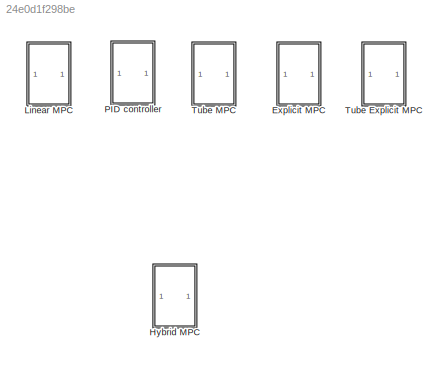
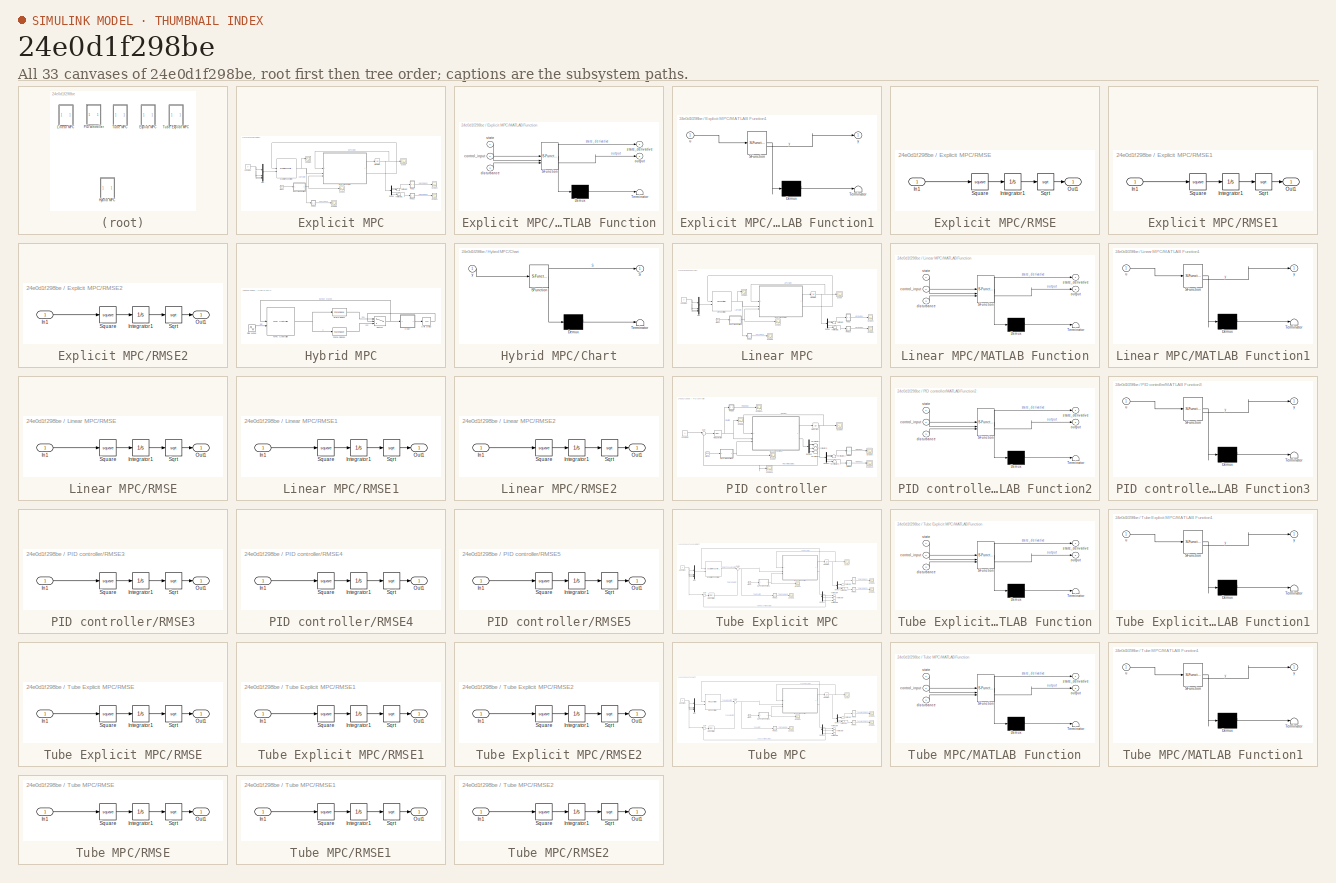
[diagram: thumbnail index - all 33 canvases of the model, root first then tree order]
MODEL slx_24e0d1f298be
KIND model
CONFIG AbsTol = auto
CONFIG EnableMultiTasking = off
CONFIG FixedStep = auto
CONFIG MaxStep = auto
CONFIG MinStep = auto
CONFIG RelTol = 1e-3
CONFIG SampleTimeConstraint = Unconstrained
CONFIG SolverName = VariableStepAuto
CONFIG StartTime = 0.0
CONFIG StopTime = 30
BLOCK [SubSystem] Explicit MPC
  Commented = on
BLOCK [Clock] Explicit MPC/Clock
BLOCK [Constant] Explicit MPC/Constant
  Value = 0
BLOCK [Demux] Explicit MPC/Demux
BLOCK [Reference] Explicit MPC/Explicit MPC Controller  REF=mpclib/Explicit MPC Controller  (lib defined in mdl_ae329e0e0455)
  SCDEnableBlockLinearizationSpecification = on
  SourceBlock = mpclib/Explicit MPC Controller
  SourceType = Explicit MPC
BLOCK [Integrator] Explicit MPC/Integrator
  InitialCondition = [0;0;0;0]
BLOCK [SubSystem] Explicit MPC/MATLAB Function
  ErrorFcn = Stateflow.Translate.translate
  LibrarySourceBlock = simulink/User-Defined\nFunctions/MATLAB Function
  PermitHierarchicalResolution = ExplicitOnly
  SFBlockType = MATLAB Function
  TreatAsAtomicUnit = on
BLOCK [Demux] Explicit MPC/MATLAB Function/ Demux 
  Outputs = 1
BLOCK [S-Function] Explicit MPC/MATLAB Function/ SFunction 
  EnableBusSupport = on
  FunctionName = sf_sfun
  PortCounts = [3 3]
  SFcnIsStateOwnerBlock = off
  SFunctionDeploymentMode = off
  Tag = Stateflow S-Function 5
BLOCK [Terminator] Explicit MPC/MATLAB Function/ Terminator 
BLOCK [Inport] Explicit MPC/MATLAB Function/control_input
  Port = 2
BLOCK [Inport] Explicit MPC/MATLAB Function/disturbance
  Port = 3
BLOCK [Outport] Explicit MPC/MATLAB Function/output
  Port = 2
BLOCK [Inport] Explicit MPC/MATLAB Function/state
BLOCK [Outport] Explicit MPC/MATLAB Function/state_derivative
BLOCK [SubSystem] Explicit MPC/MATLAB Function1
  ErrorFcn = Stateflow.Translate.translate
  LibrarySourceBlock = simulink/User-Defined\nFunctions/MATLAB Function
  PermitHierarchicalResolution = ExplicitOnly
  SFBlockType = MATLAB Function
  TreatAsAtomicUnit = on
BLOCK [Demux] Explicit MPC/MATLAB Function1/ Demux 
  Outputs = 1
BLOCK [S-Function] Explicit MPC/MATLAB Function1/ SFunction 
  EnableBusSupport = on
  FunctionName = sf_sfun
  PortCounts = [1 2]
  SFcnIsStateOwnerBlock = off
  SFunctionDeploymentMode = off
  Tag = Stateflow S-Function 6
BLOCK [Terminator] Explicit MPC/MATLAB Function1/ Terminator 
BLOCK [Inport] Explicit MPC/MATLAB Function1/u
BLOCK [Outport] Explicit MPC/MATLAB Function1/y
BLOCK [Mux] Explicit MPC/Mux
  DisplayOption = bar
BLOCK [SubSystem] Explicit MPC/RMSE
BLOCK [Inport] Explicit MPC/RMSE/In1
BLOCK [Integrator] Explicit MPC/RMSE/Integrator1
BLOCK [Outport] Explicit MPC/RMSE/Out1
BLOCK [Sqrt] Explicit MPC/RMSE/Sqrt
BLOCK [Math] Explicit MPC/RMSE/Square
  Operator = square
BLOCK [SubSystem] Explicit MPC/RMSE1
BLOCK [Inport] Explicit MPC/RMSE1/In1
BLOCK [Integrator] Explicit MPC/RMSE1/Integrator1
BLOCK [Outport] Explicit MPC/RMSE1/Out1
BLOCK [Sqrt] Explicit MPC/RMSE1/Sqrt
BLOCK [Math] Explicit MPC/RMSE1/Square
  Operator = square
BLOCK [SubSystem] Explicit MPC/RMSE2
BLOCK [Inport] Explicit MPC/RMSE2/In1
BLOCK [Integrator] Explicit MPC/RMSE2/Integrator1
BLOCK [Outport] Explicit MPC/RMSE2/Out1
BLOCK [Sqrt] Explicit MPC/RMSE2/Sqrt
BLOCK [Math] Explicit MPC/RMSE2/Square
  Operator = square
BLOCK [Scope] Explicit MPC/Scope
  Floating = off
  NumInputPorts = 1
  ScopeSpecificationString = Simulink.scopes.TimeScopeBlockCfg('CurrentConfiguration', extmgr.ConfigurationSet(extmgr.Configuration('Core','General UI',true,'FigureColor',[1 1 1]),extmgr.Configuration('Core','Source UI',true),extmgr.Configuration('Sources','WiredSimulink',true),extmgr.Configuration('Visuals','Time Domain',true,'SerializedDisplays',{struct('MinYLimReal','-4.64949','MaxYLimReal','4.78871','YLabelReal','','MinYL...<+2089ch>
BLOCK [Scope] Explicit MPC/Scope1
  Floating = off
  NumInputPorts = 1
  ScopeSpecificationString = Simulink.scopes.TimeScopeBlockCfg('CurrentConfiguration', extmgr.ConfigurationSet(extmgr.Configuration('Core','General UI',true),extmgr.Configuration('Core','Source UI',true),extmgr.Configuration('Sources','WiredSimulink',true,'DataLoggingVariableName','ScopeData1'),extmgr.Configuration('Visuals','Time Domain',true,'SerializedDisplays',{struct('MinYLimReal','-0.125','MaxYLimReal','1.125','YLabelRe...<+1363ch>  <repeated x4 — deduplicated; at blocks: Scope1>
BLOCK [Scope] Explicit MPC/Scope2
  Floating = off
  NumInputPorts = 1
  ScopeSpecificationString = Simulink.scopes.TimeScopeBlockCfg('CurrentConfiguration', extmgr.ConfigurationSet(extmgr.Configuration('Core','General UI',true,'FigureColor',[1 1 1]),extmgr.Configuration('Core','Source UI',true),extmgr.Configuration('Sources','WiredSimulink',true,'DataLoggingVariableName','ScopeData1'),extmgr.Configuration('Visuals','Time Domain',true,'SerializedDisplays',{struct('MinYLimReal','-0.22255','MaxYLi...<+1519ch>
BLOCK [Scope] Explicit MPC/Scope3
  Floating = off
  NumInputPorts = 1
  ScopeSpecificationString = Simulink.scopes.TimeScopeBlockCfg('CurrentConfiguration', extmgr.ConfigurationSet(extmgr.Configuration('Core','General UI',true),extmgr.Configuration('Core','Source UI',true),extmgr.Configuration('Sources','WiredSimulink',true,'DataLoggingVariableName','ScopeData1'),extmgr.Configuration('Visuals','Time Domain',true,'SerializedDisplays',{struct('MinYLimReal','-0.22155','MaxYLimReal','1.99397','YLab...<+1369ch>
BLOCK [Scope] Explicit MPC/Scope4
  Floating = off
  NumInputPorts = 1
  ScopeSpecificationString = Simulink.scopes.TimeScopeBlockCfg('CurrentConfiguration', extmgr.ConfigurationSet(extmgr.Configuration('Core','General UI',true),extmgr.Configuration('Core','Source UI',true),extmgr.Configuration('Sources','WiredSimulink',true,'DataLoggingVariableName','ScopeData2'),extmgr.Configuration('Visuals','Time Domain',true),extmgr.Configuration('Tools','Plot Navigation',true),extmgr.Configuration('Tools',...<+40ch>  <repeated x4 — deduplicated; at blocks: Scope4>
BLOCK [Scope] Explicit MPC/Scope5
  Floating = off
  NumInputPorts = 1
  ScopeSpecificationString = Simulink.scopes.TimeScopeBlockCfg('CurrentConfiguration', extmgr.ConfigurationSet(extmgr.Configuration('Core','General UI',true,'FigureColor',[1 1 1]),extmgr.Configuration('Core','Source UI',true),extmgr.Configuration('Sources','WiredSimulink',true,'DataLoggingVariableName','ScopeData3'),extmgr.Configuration('Visuals','Time Domain',true,'SerializedDisplays',{struct('MinYLimReal','-41752.10987','Ma...<+1550ch>  <repeated x4 — deduplicated; at blocks: Scope5>
BLOCK [Terminator] Explicit MPC/Terminator
BLOCK [Terminator] Explicit MPC/Terminator1
BLOCK [SubSystem] Hybrid MPC
BLOCK [SubSystem] Hybrid MPC/Chart
  ErrorFcn = Stateflow.Translate.translate
  PermitHierarchicalResolution = ExplicitOnly
  SFBlockType = Chart
  TreatAsAtomicUnit = on
BLOCK [Demux] Hybrid MPC/Chart/ Demux 
  Outputs = 1
BLOCK [S-Function] Hybrid MPC/Chart/ SFunction 
  EnableBusSupport = on
  FunctionName = sf_sfun
  PortCounts = [1 2]
  SFcnIsStateOwnerBlock = off
  SFunctionDeploymentMode = off
  Tag = Stateflow S-Function 11
BLOCK [Terminator] Hybrid MPC/Chart/ Terminator 
BLOCK [Outport] Hybrid MPC/Chart/S
BLOCK [Inport] Hybrid MPC/Chart/y
BLOCK [Reference] Hybrid MPC/MPC Controller  REF=mpclib/MPC Controller  (lib defined in mdl_ae329e0e0455)
  SCDEnableBlockLinearizationSpecification = on
  SourceBlock = mpclib/MPC Controller
  SourceType = MPC
BLOCK [Sin] Hybrid MPC/Sine Wave
  Amplitude = 20
  Frequency = pi/10
  SampleTime = 0
BLOCK [StateSpace] Hybrid MPC/State-Space
  A = [0 2;-2 -2]
  B = [0;2]
  C = [1 0]
  D = [0]
  InitialCondition = [0.5 ; 0]
BLOCK [StateSpace] Hybrid MPC/State-Space1
  A = [0 4;-4 -4]
  B = [0;4]
  C = [1 0]
  D = [0]
  InitialCondition = [0.5 ; 0]
BLOCK [Switch] Hybrid MPC/Switch
  Criteria = u2 > Threshold
  InputSameDT = off
  SaturateOnIntegerOverflow = off
BLOCK [UnitDelay] Hybrid MPC/Unit Delay
  HasFrameUpgradeWarning = on
  SampleTime = -1
BLOCK [SubSystem] Linear MPC
  Commented = on
BLOCK [Clock] Linear MPC/Clock
BLOCK [Constant] Linear MPC/Constant
  Value = 0
BLOCK [Demux] Linear MPC/Demux
BLOCK [Integrator] Linear MPC/Integrator
  InitialCondition = [0;0;0;0]
BLOCK [SubSystem] Linear MPC/MATLAB Function
  ErrorFcn = Stateflow.Translate.translate
  LibrarySourceBlock = simulink/User-Defined\nFunctions/MATLAB Function
  PermitHierarchicalResolution = ExplicitOnly
  SFBlockType = MATLAB Function
  TreatAsAtomicUnit = on
BLOCK [Demux] Linear MPC/MATLAB Function/ Demux 
  Outputs = 1
BLOCK [S-Function] Linear MPC/MATLAB Function/ SFunction 
  EnableBusSupport = on
  FunctionName = sf_sfun
  PortCounts = [3 3]
  SFcnIsStateOwnerBlock = off
  SFunctionDeploymentMode = off
  Tag = Stateflow S-Function 2
BLOCK [Terminator] Linear MPC/MATLAB Function/ Terminator 
BLOCK [Inport] Linear MPC/MATLAB Function/control_input
  Port = 2
BLOCK [Inport] Linear MPC/MATLAB Function/disturbance
  Port = 3
BLOCK [Outport] Linear MPC/MATLAB Function/output
  Port = 2
BLOCK [Inport] Linear MPC/MATLAB Function/state
BLOCK [Outport] Linear MPC/MATLAB Function/state_derivative
BLOCK [SubSystem] Linear MPC/MATLAB Function1
  ErrorFcn = Stateflow.Translate.translate
  LibrarySourceBlock = simulink/User-Defined\nFunctions/MATLAB Function
  PermitHierarchicalResolution = ExplicitOnly
  SFBlockType = MATLAB Function
  TreatAsAtomicUnit = on
BLOCK [Demux] Linear MPC/MATLAB Function1/ Demux 
  Outputs = 1
BLOCK [S-Function] Linear MPC/MATLAB Function1/ SFunction 
  EnableBusSupport = on
  FunctionName = sf_sfun
  PortCounts = [1 2]
  SFcnIsStateOwnerBlock = off
  SFunctionDeploymentMode = off
  Tag = Stateflow S-Function 1
BLOCK [Terminator] Linear MPC/MATLAB Function1/ Terminator 
BLOCK [Inport] Linear MPC/MATLAB Function1/u
BLOCK [Outport] Linear MPC/MATLAB Function1/y
BLOCK [Reference] Linear MPC/MPC Controller  REF=mpclib/MPC Controller  (lib defined in mdl_ae329e0e0455)
  SCDEnableBlockLinearizationSpecification = on
  SourceBlock = mpclib/MPC Controller
  SourceType = MPC
BLOCK [Mux] Linear MPC/Mux
  DisplayOption = bar
BLOCK [SubSystem] Linear MPC/RMSE
BLOCK [Inport] Linear MPC/RMSE/In1
BLOCK [Integrator] Linear MPC/RMSE/Integrator1
BLOCK [Outport] Linear MPC/RMSE/Out1
BLOCK [Sqrt] Linear MPC/RMSE/Sqrt
BLOCK [Math] Linear MPC/RMSE/Square
  Operator = square
BLOCK [SubSystem] Linear MPC/RMSE1
BLOCK [Inport] Linear MPC/RMSE1/In1
BLOCK [Integrator] Linear MPC/RMSE1/Integrator1
BLOCK [Outport] Linear MPC/RMSE1/Out1
BLOCK [Sqrt] Linear MPC/RMSE1/Sqrt
BLOCK [Math] Linear MPC/RMSE1/Square
  Operator = square
BLOCK [SubSystem] Linear MPC/RMSE2
BLOCK [Inport] Linear MPC/RMSE2/In1
BLOCK [Integrator] Linear MPC/RMSE2/Integrator1
BLOCK [Outport] Linear MPC/RMSE2/Out1
BLOCK [Sqrt] Linear MPC/RMSE2/Sqrt
BLOCK [Math] Linear MPC/RMSE2/Square
  Operator = square
BLOCK [Scope] Linear MPC/Scope
  Floating = off
  NumInputPorts = 1
  ScopeSpecificationString = Simulink.scopes.TimeScopeBlockCfg('CurrentConfiguration', extmgr.ConfigurationSet(extmgr.Configuration('Core','General UI',true,'FigureColor',[1 1 1]),extmgr.Configuration('Core','Source UI',true),extmgr.Configuration('Sources','WiredSimulink',true),extmgr.Configuration('Visuals','Time Domain',true,'SerializedDisplays',{struct('MinYLimReal','-53.86822','MaxYLimReal','8.29117','YLabelReal','','MinY...<+2092ch>
BLOCK [Scope] Linear MPC/Scope1
  Floating = off
  NumInputPorts = 1
BLOCK [Scope] Linear MPC/Scope2
  Floating = off
  NumInputPorts = 1
  ScopeSpecificationString = Simulink.scopes.TimeScopeBlockCfg('CurrentConfiguration', extmgr.ConfigurationSet(extmgr.Configuration('Core','General UI',true,'FigureColor',[1 1 1]),extmgr.Configuration('Core','Source UI',true),extmgr.Configuration('Sources','WiredSimulink',true,'DataLoggingVariableName','ScopeData1'),extmgr.Configuration('Visuals','Time Domain',true,'SerializedDisplays',{struct('MinYLimReal','-40299.43835','Ma...<+1547ch>
BLOCK [Scope] Linear MPC/Scope3
  Floating = off
  NumInputPorts = 1
  ScopeSpecificationString = Simulink.scopes.TimeScopeBlockCfg('CurrentConfiguration', extmgr.ConfigurationSet(extmgr.Configuration('Core','General UI',true),extmgr.Configuration('Core','Source UI',true),extmgr.Configuration('Sources','WiredSimulink',true,'DataLoggingVariableName','ScopeData1'),extmgr.Configuration('Visuals','Time Domain',true,'SerializedDisplays',{struct('MinYLimReal','-0.17546','MaxYLimReal','1.57916','YLab...<+1364ch>  <repeated x3 — deduplicated; at blocks: Scope3>
BLOCK [Scope] Linear MPC/Scope4
  Floating = off
  NumInputPorts = 1
BLOCK [Scope] Linear MPC/Scope5
  Floating = off
  NumInputPorts = 1
BLOCK [Terminator] Linear MPC/Terminator
BLOCK [Terminator] Linear MPC/Terminator1
BLOCK [SubSystem] PID controller
  Commented = on
BLOCK [Clock] PID controller/Clock1
BLOCK [Constant] PID controller/Constant1
  Value = 0
BLOCK [Demux] PID controller/Demux1
BLOCK [Demux] PID controller/Demux2
BLOCK [Integrator] PID controller/Integrator1
  InitialCondition = [0;0;0;0]
BLOCK [SubSystem] PID controller/MATLAB Function2
  ErrorFcn = Stateflow.Translate.translate
  LibrarySourceBlock = simulink/User-Defined\nFunctions/MATLAB Function
  PermitHierarchicalResolution = ExplicitOnly
  SFBlockType = MATLAB Function
  TreatAsAtomicUnit = on
BLOCK [Demux] PID controller/MATLAB Function2/ Demux 
  Outputs = 1
BLOCK [S-Function] PID controller/MATLAB Function2/ SFunction 
  EnableBusSupport = on
  FunctionName = sf_sfun
  PortCounts = [3 3]
  SFcnIsStateOwnerBlock = off
  SFunctionDeploymentMode = off
  Tag = Stateflow S-Function 3
BLOCK [Terminator] PID controller/MATLAB Function2/ Terminator 
BLOCK [Inport] PID controller/MATLAB Function2/control_input
  Port = 2
BLOCK [Inport] PID controller/MATLAB Function2/disturbance
  Port = 3
BLOCK [Outport] PID controller/MATLAB Function2/output
  Port = 2
BLOCK [Inport] PID controller/MATLAB Function2/state
BLOCK [Outport] PID controller/MATLAB Function2/state_derivative
BLOCK [SubSystem] PID controller/MATLAB Function3
  ErrorFcn = Stateflow.Translate.translate
  LibrarySourceBlock = simulink/User-Defined\nFunctions/MATLAB Function
  PermitHierarchicalResolution = ExplicitOnly
  SFBlockType = MATLAB Function
  TreatAsAtomicUnit = on
BLOCK [Demux] PID controller/MATLAB Function3/ Demux 
  Outputs = 1
BLOCK [S-Function] PID controller/MATLAB Function3/ SFunction 
  EnableBusSupport = on
  FunctionName = sf_sfun
  PortCounts = [1 2]
  SFcnIsStateOwnerBlock = off
  SFunctionDeploymentMode = off
  Tag = Stateflow S-Function 4
BLOCK [Terminator] PID controller/MATLAB Function3/ Terminator 
BLOCK [Inport] PID controller/MATLAB Function3/u
BLOCK [Outport] PID controller/MATLAB Function3/y
BLOCK [Reference] PID controller/PID Controller  REF=slpidlib/PID Controller
  LibrarySourceBlock = simulink/Continuous/PID Controller
  SourceBlock = slpidlib/PID Controller
  SourceType = PID 1dof
BLOCK [SubSystem] PID controller/RMSE3
BLOCK [Inport] PID controller/RMSE3/In1
BLOCK [Integrator] PID controller/RMSE3/Integrator1
BLOCK [Outport] PID controller/RMSE3/Out1
BLOCK [Sqrt] PID controller/RMSE3/Sqrt
BLOCK [Math] PID controller/RMSE3/Square
  Operator = square
BLOCK [SubSystem] PID controller/RMSE4
BLOCK [Inport] PID controller/RMSE4/In1
BLOCK [Integrator] PID controller/RMSE4/Integrator1
BLOCK [Outport] PID controller/RMSE4/Out1
BLOCK [Sqrt] PID controller/RMSE4/Sqrt
BLOCK [Math] PID controller/RMSE4/Square
  Operator = square
BLOCK [SubSystem] PID controller/RMSE5
BLOCK [Inport] PID controller/RMSE5/In1
BLOCK [Integrator] PID controller/RMSE5/Integrator1
BLOCK [Outport] PID controller/RMSE5/Out1
BLOCK [Sqrt] PID controller/RMSE5/Sqrt
BLOCK [Math] PID controller/RMSE5/Square
  Operator = square
BLOCK [Scope] PID controller/Scope10
  Floating = off
  NumInputPorts = 1
  ScopeSpecificationString = Simulink.scopes.TimeScopeBlockCfg('CurrentConfiguration', extmgr.ConfigurationSet(extmgr.Configuration('Core','General UI',true),extmgr.Configuration('Core','Source UI',true),extmgr.Configuration('Sources','WiredSimulink',true,'DataLoggingVariableName','ScopeData4'),extmgr.Configuration('Visuals','Time Domain',true),extmgr.Configuration('Tools','Plot Navigation',true),extmgr.Configuration('Tools',...<+40ch>
BLOCK [Scope] PID controller/Scope11
  Floating = off
  NumInputPorts = 1
  ScopeSpecificationString = Simulink.scopes.TimeScopeBlockCfg('CurrentConfiguration', extmgr.ConfigurationSet(extmgr.Configuration('Core','General UI',true,'FigureColor',[1 1 1]),extmgr.Configuration('Core','Source UI',true),extmgr.Configuration('Sources','WiredSimulink',true,'DataLoggingVariableName','ScopeData5'),extmgr.Configuration('Visuals','Time Domain',true,'SerializedDisplays',{struct('MinYLimReal','-41752.10987','Ma...<+1550ch>
BLOCK [Scope] PID controller/Scope12
  Floating = off
  NumInputPorts = 1
  ScopeSpecificationString = Simulink.scopes.TimeScopeBlockCfg('CurrentConfiguration', extmgr.ConfigurationSet(extmgr.Configuration('Core','General UI',true),extmgr.Configuration('Core','Source UI',true),extmgr.Configuration('Sources','WiredSimulink',true,'DataLoggingVariableName','ScopeData10'),extmgr.Configuration('Visuals','Time Domain',true,'SerializedDisplays',{struct('MinYLimReal','-0.01434','MaxYLimReal','0.01434','YLa...<+1409ch>
BLOCK [Scope] PID controller/Scope6
  Floating = off
  NumInputPorts = 1
  ScopeSpecificationString = Simulink.scopes.TimeScopeBlockCfg('CurrentConfiguration', extmgr.ConfigurationSet(extmgr.Configuration('Core','General UI',true,'FigureColor',[1 1 1]),extmgr.Configuration('Core','Source UI',true),extmgr.Configuration('Sources','WiredSimulink',true,'DataLoggingVariableName','ScopeData6'),extmgr.Configuration('Visuals','Time Domain',true,'SerializedDisplays',{struct('MinYLimReal','-53.76175','MaxYL...<+2091ch>
BLOCK [Scope] PID controller/Scope7
  Floating = off
  NumInputPorts = 1
  ScopeSpecificationString = Simulink.scopes.TimeScopeBlockCfg('CurrentConfiguration', extmgr.ConfigurationSet(extmgr.Configuration('Core','General UI',true),extmgr.Configuration('Core','Source UI',true),extmgr.Configuration('Sources','WiredSimulink',true,'DataLoggingVariableName','ScopeData7'),extmgr.Configuration('Visuals','Time Domain',true,'SerializedDisplays',{struct('MinYLimReal','-0.125','MaxYLimReal','1.125','YLabelRe...<+1363ch>
BLOCK [Scope] PID controller/Scope8
  Floating = off
  NumInputPorts = 1
  ScopeSpecificationString = Simulink.scopes.TimeScopeBlockCfg('CurrentConfiguration', extmgr.ConfigurationSet(extmgr.Configuration('Core','General UI',true,'FigureColor',[1 1 1]),extmgr.Configuration('Core','Source UI',true),extmgr.Configuration('Sources','WiredSimulink',true,'DataLoggingVariableName','ScopeData8'),extmgr.Configuration('Visuals','Time Domain',true,'SerializedDisplays',{struct('MinYLimReal','-41752.10987','Ma...<+1537ch>
BLOCK [Scope] PID controller/Scope9
  Floating = off
  NumInputPorts = 1
  ScopeSpecificationString = Simulink.scopes.TimeScopeBlockCfg('CurrentConfiguration', extmgr.ConfigurationSet(extmgr.Configuration('Core','General UI',true),extmgr.Configuration('Core','Source UI',true),extmgr.Configuration('Sources','WiredSimulink',true,'DataLoggingVariableName','ScopeData9'),extmgr.Configuration('Visuals','Time Domain',true,'SerializedDisplays',{struct('MinYLimReal','-0.17546','MaxYLimReal','1.57916','YLab...<+1364ch>
BLOCK [Sum] PID controller/Sum
  Inputs = |+-
BLOCK [Terminator] PID controller/Terminator2
BLOCK [Terminator] PID controller/Terminator3
BLOCK [Terminator] PID controller/Terminator4
BLOCK [Terminator] PID controller/Terminator5
BLOCK [Terminator] PID controller/Terminator6
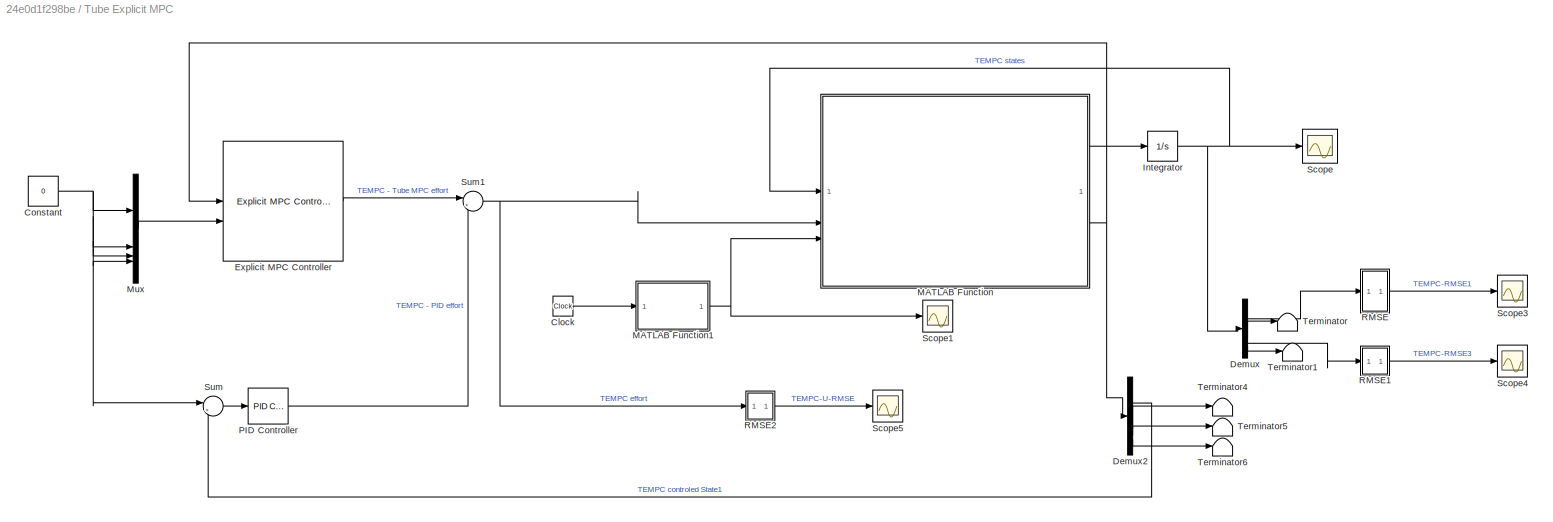
BLOCK [SubSystem] Tube Explicit MPC
  Commented = on
BLOCK [Clock] Tube Explicit MPC/Clock
BLOCK [Constant] Tube Explicit MPC/Constant
  Value = 0
BLOCK [Demux] Tube Explicit MPC/Demux
BLOCK [Demux] Tube Explicit MPC/Demux2
BLOCK [Reference] Tube Explicit MPC/Explicit MPC Controller  REF=mpclib/Explicit MPC Controller  (lib defined in mdl_ae329e0e0455)
  SCDEnableBlockLinearizationSpecification = on
  SourceBlock = mpclib/Explicit MPC Controller
  SourceType = Explicit MPC
BLOCK [Integrator] Tube Explicit MPC/Integrator
  InitialCondition = [0;0;0;0]
BLOCK [SubSystem] Tube Explicit MPC/MATLAB Function
  ErrorFcn = Stateflow.Translate.translate
  LibrarySourceBlock = simulink/User-Defined\nFunctions/MATLAB Function
  PermitHierarchicalResolution = ExplicitOnly
  SFBlockType = MATLAB Function
  TreatAsAtomicUnit = on
BLOCK [Demux] Tube Explicit MPC/MATLAB Function/ Demux 
  Outputs = 1
BLOCK [S-Function] Tube Explicit MPC/MATLAB Function/ SFunction 
  EnableBusSupport = on
  FunctionName = sf_sfun
  PortCounts = [3 3]
  SFcnIsStateOwnerBlock = off
  SFunctionDeploymentMode = off
  Tag = Stateflow S-Function 9
BLOCK [Terminator] Tube Explicit MPC/MATLAB Function/ Terminator 
BLOCK [Inport] Tube Explicit MPC/MATLAB Function/control_input
  Port = 2
BLOCK [Inport] Tube Explicit MPC/MATLAB Function/disturbance
  Port = 3
BLOCK [Outport] Tube Explicit MPC/MATLAB Function/output
  Port = 2
BLOCK [Inport] Tube Explicit MPC/MATLAB Function/state
BLOCK [Outport] Tube Explicit MPC/MATLAB Function/state_derivative
BLOCK [SubSystem] Tube Explicit MPC/MATLAB Function1
  ErrorFcn = Stateflow.Translate.translate
  LibrarySourceBlock = simulink/User-Defined\nFunctions/MATLAB Function
  PermitHierarchicalResolution = ExplicitOnly
  SFBlockType = MATLAB Function
  TreatAsAtomicUnit = on
BLOCK [Demux] Tube Explicit MPC/MATLAB Function1/ Demux 
  Outputs = 1
BLOCK [S-Function] Tube Explicit MPC/MATLAB Function1/ SFunction 
  EnableBusSupport = on
  FunctionName = sf_sfun
  PortCounts = [1 2]
  SFcnIsStateOwnerBlock = off
  SFunctionDeploymentMode = off
  Tag = Stateflow S-Function 10
BLOCK [Terminator] Tube Explicit MPC/MATLAB Function1/ Terminator 
BLOCK [Inport] Tube Explicit MPC/MATLAB Function1/u
BLOCK [Outport] Tube Explicit MPC/MATLAB Function1/y
BLOCK [Mux] Tube Explicit MPC/Mux
  DisplayOption = bar
BLOCK [Reference] Tube Explicit MPC/PID Controller  REF=slpidlib/PID Controller
  LibrarySourceBlock = simulink/Continuous/PID Controller
  SourceBlock = slpidlib/PID Controller
  SourceType = PID 1dof
BLOCK [SubSystem] Tube Explicit MPC/RMSE
BLOCK [Inport] Tube Explicit MPC/RMSE/In1
BLOCK [Integrator] Tube Explicit MPC/RMSE/Integrator1
BLOCK [Outport] Tube Explicit MPC/RMSE/Out1
BLOCK [Sqrt] Tube Explicit MPC/RMSE/Sqrt
BLOCK [Math] Tube Explicit MPC/RMSE/Square
  Operator = square
BLOCK [SubSystem] Tube Explicit MPC/RMSE1
BLOCK [Inport] Tube Explicit MPC/RMSE1/In1
BLOCK [Integrator] Tube Explicit MPC/RMSE1/Integrator1
BLOCK [Outport] Tube Explicit MPC/RMSE1/Out1
BLOCK [Sqrt] Tube Explicit MPC/RMSE1/Sqrt
BLOCK [Math] Tube Explicit MPC/RMSE1/Square
  Operator = square
BLOCK [SubSystem] Tube Explicit MPC/RMSE2
BLOCK [Inport] Tube Explicit MPC/RMSE2/In1
BLOCK [Integrator] Tube Explicit MPC/RMSE2/Integrator1
BLOCK [Outport] Tube Explicit MPC/RMSE2/Out1
BLOCK [Sqrt] Tube Explicit MPC/RMSE2/Sqrt
BLOCK [Math] Tube Explicit MPC/RMSE2/Square
  Operator = square
BLOCK [Scope] Tube Explicit MPC/Scope
  Floating = off
  NumInputPorts = 1
  ScopeSpecificationString = Simulink.scopes.TimeScopeBlockCfg('CurrentConfiguration', extmgr.ConfigurationSet(extmgr.Configuration('Core','General UI',true,'FigureColor',[1 1 1]),extmgr.Configuration('Core','Source UI',true),extmgr.Configuration('Sources','WiredSimulink',true),extmgr.Configuration('Visuals','Time Domain',true,'SerializedDisplays',{struct('MinYLimReal','-0.78173','MaxYLimReal','0.6691','YLabelReal','','MinYLi...<+2091ch>
BLOCK [Scope] Tube Explicit MPC/Scope1
  Floating = off
  NumInputPorts = 1
BLOCK [Scope] Tube Explicit MPC/Scope3
  Floating = off
  NumInputPorts = 1
BLOCK [Scope] Tube Explicit MPC/Scope4
  Floating = off
  NumInputPorts = 1
BLOCK [Scope] Tube Explicit MPC/Scope5
  Floating = off
  NumInputPorts = 1
BLOCK [Sum] Tube Explicit MPC/Sum
  Inputs = |+-
BLOCK [Sum] Tube Explicit MPC/Sum1
  Inputs = |++
BLOCK [Terminator] Tube Explicit MPC/Terminator
BLOCK [Terminator] Tube Explicit MPC/Terminator1
BLOCK [Terminator] Tube Explicit MPC/Terminator4
BLOCK [Terminator] Tube Explicit MPC/Terminator5
BLOCK [Terminator] Tube Explicit MPC/Terminator6
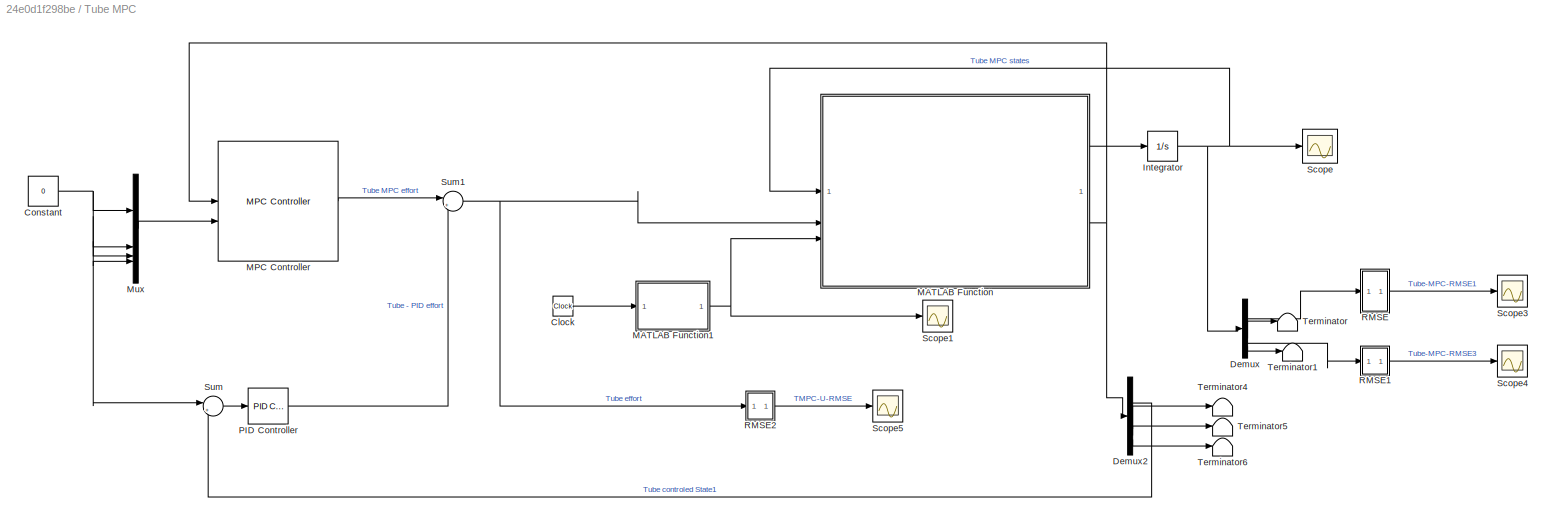
BLOCK [SubSystem] Tube MPC
  Commented = on
BLOCK [Clock] Tube MPC/Clock
BLOCK [Constant] Tube MPC/Constant
  Value = 0
BLOCK [Demux] Tube MPC/Demux
BLOCK [Demux] Tube MPC/Demux2
BLOCK [Integrator] Tube MPC/Integrator
  InitialCondition = [0;0;0;0]
BLOCK [SubSystem] Tube MPC/MATLAB Function
  ErrorFcn = Stateflow.Translate.translate
  LibrarySourceBlock = simulink/User-Defined\nFunctions/MATLAB Function
  PermitHierarchicalResolution = ExplicitOnly
  SFBlockType = MATLAB Function
  TreatAsAtomicUnit = on
BLOCK [Demux] Tube MPC/MATLAB Function/ Demux 
  Outputs = 1
BLOCK [S-Function] Tube MPC/MATLAB Function/ SFunction 
  EnableBusSupport = on
  FunctionName = sf_sfun
  PortCounts = [3 3]
  SFcnIsStateOwnerBlock = off
  SFunctionDeploymentMode = off
  Tag = Stateflow S-Function 7
BLOCK [Terminator] Tube MPC/MATLAB Function/ Terminator 
BLOCK [Inport] Tube MPC/MATLAB Function/control_input
  Port = 2
BLOCK [Inport] Tube MPC/MATLAB Function/disturbance
  Port = 3
BLOCK [Outport] Tube MPC/MATLAB Function/output
  Port = 2
BLOCK [Inport] Tube MPC/MATLAB Function/state
BLOCK [Outport] Tube MPC/MATLAB Function/state_derivative
BLOCK [SubSystem] Tube MPC/MATLAB Function1
  ErrorFcn = Stateflow.Translate.translate
  LibrarySourceBlock = simulink/User-Defined\nFunctions/MATLAB Function
  PermitHierarchicalResolution = ExplicitOnly
  SFBlockType = MATLAB Function
  TreatAsAtomicUnit = on
BLOCK [Demux] Tube MPC/MATLAB Function1/ Demux 
  Outputs = 1
BLOCK [S-Function] Tube MPC/MATLAB Function1/ SFunction 
  EnableBusSupport = on
  FunctionName = sf_sfun
  PortCounts = [1 2]
  SFcnIsStateOwnerBlock = off
  SFunctionDeploymentMode = off
  Tag = Stateflow S-Function 8
BLOCK [Terminator] Tube MPC/MATLAB Function1/ Terminator 
BLOCK [Inport] Tube MPC/MATLAB Function1/u
BLOCK [Outport] Tube MPC/MATLAB Function1/y
BLOCK [Reference] Tube MPC/MPC Controller  REF=mpclib/MPC Controller  (lib defined in mdl_ae329e0e0455)
  SCDEnableBlockLinearizationSpecification = on
  SourceBlock = mpclib/MPC Controller
  SourceType = MPC
BLOCK [Mux] Tube MPC/Mux
  DisplayOption = bar
BLOCK [Reference] Tube MPC/PID Controller  REF=slpidlib/PID Controller
  LibrarySourceBlock = simulink/Continuous/PID Controller
  SourceBlock = slpidlib/PID Controller
  SourceType = PID 1dof
BLOCK [SubSystem] Tube MPC/RMSE
BLOCK [Inport] Tube MPC/RMSE/In1
BLOCK [Integrator] Tube MPC/RMSE/Integrator1
BLOCK [Outport] Tube MPC/RMSE/Out1
BLOCK [Sqrt] Tube MPC/RMSE/Sqrt
BLOCK [Math] Tube MPC/RMSE/Square
  Operator = square
BLOCK [SubSystem] Tube MPC/RMSE1
BLOCK [Inport] Tube MPC/RMSE1/In1
BLOCK [Integrator] Tube MPC/RMSE1/Integrator1
BLOCK [Outport] Tube MPC/RMSE1/Out1
BLOCK [Sqrt] Tube MPC/RMSE1/Sqrt
BLOCK [Math] Tube MPC/RMSE1/Square
  Operator = square
BLOCK [SubSystem] Tube MPC/RMSE2
BLOCK [Inport] Tube MPC/RMSE2/In1
BLOCK [Integrator] Tube MPC/RMSE2/Integrator1
BLOCK [Outport] Tube MPC/RMSE2/Out1
BLOCK [Sqrt] Tube MPC/RMSE2/Sqrt
BLOCK [Math] Tube MPC/RMSE2/Square
  Operator = square
BLOCK [Scope] Tube MPC/Scope
  Floating = off
  NumInputPorts = 1
  ScopeSpecificationString = Simulink.scopes.TimeScopeBlockCfg('CurrentConfiguration', extmgr.ConfigurationSet(extmgr.Configuration('Core','General UI',true,'FigureColor',[1 1 1]),extmgr.Configuration('Core','Source UI',true),extmgr.Configuration('Sources','WiredSimulink',true),extmgr.Configuration('Visuals','Time Domain',true,'SerializedDisplays',{struct('MinYLimReal','-0.07086','MaxYLimReal','0.1081','YLabelReal','','MinYLi...<+2103ch>
BLOCK [Scope] Tube MPC/Scope1
  Floating = off
  NumInputPorts = 1
BLOCK [Scope] Tube MPC/Scope3
  Floating = off
  NumInputPorts = 1
BLOCK [Scope] Tube MPC/Scope4
  Floating = off
  NumInputPorts = 1
BLOCK [Scope] Tube MPC/Scope5
  Floating = off
  NumInputPorts = 1
BLOCK [Sum] Tube MPC/Sum
  Inputs = |+-
BLOCK [Sum] Tube MPC/Sum1
  Inputs = |++
BLOCK [Terminator] Tube MPC/Terminator
BLOCK [Terminator] Tube MPC/Terminator1
BLOCK [Terminator] Tube MPC/Terminator4
BLOCK [Terminator] Tube MPC/Terminator5
BLOCK [Terminator] Tube MPC/Terminator6
LINE Explicit MPC/Clock:1 -> Explicit MPC/MATLAB Function1:1
NET Explicit MPC/Constant:1 -> Explicit MPC/Mux:1, Explicit MPC/Mux:2, Explicit MPC/Mux:3, Explicit MPC/Mux:4
LINE Explicit MPC/Demux:1 -> Explicit MPC/RMSE:1
LINE Explicit MPC/Demux:2 -> Explicit MPC/Terminator:1
LINE Explicit MPC/Demux:3 -> Explicit MPC/RMSE1:1
LINE Explicit MPC/Demux:4 -> Explicit MPC/Terminator1:1
NET Explicit MPC/Explicit MPC Controller:1 -> Explicit MPC/MATLAB Function:2, Explicit MPC/RMSE2:1, Explicit MPC/Scope2:1
NET Explicit MPC/Integrator:1 -> Explicit MPC/Demux:1, Explicit MPC/MATLAB Function:1, Explicit MPC/Scope:1
NET Explicit MPC/MATLAB Function1:1 -> Explicit MPC/MATLAB Function:3, Explicit MPC/Scope1:1
LINE Explicit MPC/MATLAB Function:1 -> Explicit MPC/Integrator:1
LINE Explicit MPC/MATLAB Function:2 -> Explicit MPC/Explicit MPC Controller:1
LINE Explicit MPC/Mux:1 -> Explicit MPC/Explicit MPC Controller:2
LINE Explicit MPC/RMSE/In1:1 -> Explicit MPC/RMSE/Square:1
LINE Explicit MPC/RMSE/Integrator1:1 -> Explicit MPC/RMSE/Sqrt:1
LINE Explicit MPC/RMSE/Sqrt:1 -> Explicit MPC/RMSE/Out1:1
LINE Explicit MPC/RMSE/Square:1 -> Explicit MPC/RMSE/Integrator1:1
LINE Explicit MPC/RMSE1/In1:1 -> Explicit MPC/RMSE1/Square:1
LINE Explicit MPC/RMSE1/Integrator1:1 -> Explicit MPC/RMSE1/Sqrt:1
LINE Explicit MPC/RMSE1/Sqrt:1 -> Explicit MPC/RMSE1/Out1:1
LINE Explicit MPC/RMSE1/Square:1 -> Explicit MPC/RMSE1/Integrator1:1
LINE Explicit MPC/RMSE1:1 -> Explicit MPC/Scope4:1
LINE Explicit MPC/RMSE2/In1:1 -> Explicit MPC/RMSE2/Square:1
LINE Explicit MPC/RMSE2/Integrator1:1 -> Explicit MPC/RMSE2/Sqrt:1
LINE Explicit MPC/RMSE2/Sqrt:1 -> Explicit MPC/RMSE2/Out1:1
LINE Explicit MPC/RMSE2/Square:1 -> Explicit MPC/RMSE2/Integrator1:1
LINE Explicit MPC/RMSE2:1 -> Explicit MPC/Scope5:1
LINE Explicit MPC/RMSE:1 -> Explicit MPC/Scope3:1
LINE Hybrid MPC/Chart:1 -> Hybrid MPC/Unit Delay:1
NET Hybrid MPC/MPC Controller:1 -> Hybrid MPC/State-Space1:1, Hybrid MPC/State-Space:1
LINE Hybrid MPC/Sine Wave:1 -> Hybrid MPC/MPC Controller:2
LINE Hybrid MPC/State-Space1:1 -> Hybrid MPC/Switch:3
LINE Hybrid MPC/State-Space:1 -> Hybrid MPC/Switch:1
NET Hybrid MPC/Switch:1 -> Hybrid MPC/Chart:1, Hybrid MPC/MPC Controller:1
LINE Hybrid MPC/Unit Delay:1 -> Hybrid MPC/Switch:2
LINE Linear MPC/Clock:1 -> Linear MPC/MATLAB Function1:1
NET Linear MPC/Constant:1 -> Linear MPC/Mux:1, Linear MPC/Mux:2, Linear MPC/Mux:3, Linear MPC/Mux:4
LINE Linear MPC/Demux:1 -> Linear MPC/RMSE:1
LINE Linear MPC/Demux:2 -> Linear MPC/Terminator:1
LINE Linear MPC/Demux:3 -> Linear MPC/RMSE1:1
LINE Linear MPC/Demux:4 -> Linear MPC/Terminator1:1
NET Linear MPC/Integrator:1 -> Linear MPC/Demux:1, Linear MPC/MATLAB Function:1, Linear MPC/Scope:1
NET Linear MPC/MATLAB Function1:1 -> Linear MPC/MATLAB Function:3, Linear MPC/Scope1:1
LINE Linear MPC/MATLAB Function:1 -> Linear MPC/Integrator:1
LINE Linear MPC/MATLAB Function:2 -> Linear MPC/MPC Controller:1
NET Linear MPC/MPC Controller:1 -> Linear MPC/MATLAB Function:2, Linear MPC/RMSE2:1, Linear MPC/Scope2:1
LINE Linear MPC/Mux:1 -> Linear MPC/MPC Controller:2
LINE Linear MPC/RMSE/In1:1 -> Linear MPC/RMSE/Square:1
LINE Linear MPC/RMSE/Integrator1:1 -> Linear MPC/RMSE/Sqrt:1
LINE Linear MPC/RMSE/Sqrt:1 -> Linear MPC/RMSE/Out1:1
LINE Linear MPC/RMSE/Square:1 -> Linear MPC/RMSE/Integrator1:1
LINE Linear MPC/RMSE1/In1:1 -> Linear MPC/RMSE1/Square:1
LINE Linear MPC/RMSE1/Integrator1:1 -> Linear MPC/RMSE1/Sqrt:1
LINE Linear MPC/RMSE1/Sqrt:1 -> Linear MPC/RMSE1/Out1:1
LINE Linear MPC/RMSE1/Square:1 -> Linear MPC/RMSE1/Integrator1:1
LINE Linear MPC/RMSE1:1 -> Linear MPC/Scope4:1
LINE Linear MPC/RMSE2/In1:1 -> Linear MPC/RMSE2/Square:1
LINE Linear MPC/RMSE2/Integrator1:1 -> Linear MPC/RMSE2/Sqrt:1
LINE Linear MPC/RMSE2/Sqrt:1 -> Linear MPC/RMSE2/Out1:1
LINE Linear MPC/RMSE2/Square:1 -> Linear MPC/RMSE2/Integrator1:1
LINE Linear MPC/RMSE2:1 -> Linear MPC/Scope5:1
LINE Linear MPC/RMSE:1 -> Linear MPC/Scope3:1
LINE PID controller/Clock1:1 -> PID controller/MATLAB Function3:1
LINE PID controller/Constant1:1 -> PID controller/Sum:1
LINE PID controller/Demux1:1 -> PID controller/RMSE3:1
LINE PID controller/Demux1:2 -> PID controller/Terminator2:1
LINE PID controller/Demux1:3 -> PID controller/RMSE4:1
LINE PID controller/Demux1:4 -> PID controller/Terminator3:1
NET PID controller/Demux2:1 -> PID controller/Scope12:1, PID controller/Sum:2
LINE PID controller/Demux2:2 -> PID controller/Terminator4:1
LINE PID controller/Demux2:3 -> PID controller/Terminator5:1
LINE PID controller/Demux2:4 -> PID controller/Terminator6:1
NET PID controller/Integrator1:1 -> PID controller/Demux1:1, PID controller/MATLAB Function2:1, PID controller/Scope6:1
LINE PID controller/MATLAB Function2:1 -> PID controller/Integrator1:1
LINE PID controller/MATLAB Function2:2 -> PID controller/Demux2:1
NET PID controller/MATLAB Function3:1 -> PID controller/MATLAB Function2:3, PID controller/Scope7:1
NET PID controller/PID Controller:1 -> PID controller/MATLAB Function2:2, PID controller/RMSE5:1, PID controller/Scope8:1
LINE PID controller/RMSE3/In1:1 -> PID controller/RMSE3/Square:1
LINE PID controller/RMSE3/Integrator1:1 -> PID controller/RMSE3/Sqrt:1
LINE PID controller/RMSE3/Sqrt:1 -> PID controller/RMSE3/Out1:1
LINE PID controller/RMSE3/Square:1 -> PID controller/RMSE3/Integrator1:1
LINE PID controller/RMSE3:1 -> PID controller/Scope9:1
LINE PID controller/RMSE4/In1:1 -> PID controller/RMSE4/Square:1
LINE PID controller/RMSE4/Integrator1:1 -> PID controller/RMSE4/Sqrt:1
LINE PID controller/RMSE4/Sqrt:1 -> PID controller/RMSE4/Out1:1
LINE PID controller/RMSE4/Square:1 -> PID controller/RMSE4/Integrator1:1
LINE PID controller/RMSE4:1 -> PID controller/Scope10:1
LINE PID controller/RMSE5/In1:1 -> PID controller/RMSE5/Square:1
LINE PID controller/RMSE5/Integrator1:1 -> PID controller/RMSE5/Sqrt:1
LINE PID controller/RMSE5/Sqrt:1 -> PID controller/RMSE5/Out1:1
LINE PID controller/RMSE5/Square:1 -> PID controller/RMSE5/Integrator1:1
LINE PID controller/RMSE5:1 -> PID controller/Scope11:1
LINE PID controller/Sum:1 -> PID controller/PID Controller:1
LINE Tube Explicit MPC/Clock:1 -> Tube Explicit MPC/MATLAB Function1:1
NET Tube Explicit MPC/Constant:1 -> Tube Explicit MPC/Mux:1, Tube Explicit MPC/Mux:2, Tube Explicit MPC/Mux:3, Tube Explicit MPC/Mux:4, Tube Explicit MPC/Sum:1
LINE Tube Explicit MPC/Demux2:1 -> Tube Explicit MPC/Sum:2
LINE Tube Explicit MPC/Demux2:2 -> Tube Explicit MPC/Terminator4:1
LINE Tube Explicit MPC/Demux2:3 -> Tube Explicit MPC/Terminator5:1
LINE Tube Explicit MPC/Demux2:4 -> Tube Explicit MPC/Terminator6:1
LINE Tube Explicit MPC/Demux:1 -> Tube Explicit MPC/RMSE:1
LINE Tube Explicit MPC/Demux:2 -> Tube Explicit MPC/Terminator:1
LINE Tube Explicit MPC/Demux:3 -> Tube Explicit MPC/RMSE1:1
LINE Tube Explicit MPC/Demux:4 -> Tube Explicit MPC/Terminator1:1
LINE Tube Explicit MPC/Explicit MPC Controller:1 -> Tube Explicit MPC/Sum1:1
NET Tube Explicit MPC/Integrator:1 -> Tube Explicit MPC/Demux:1, Tube Explicit MPC/MATLAB Function:1, Tube Explicit MPC/Scope:1
NET Tube Explicit MPC/MATLAB Function1:1 -> Tube Explicit MPC/MATLAB Function:3, Tube Explicit MPC/Scope1:1
LINE Tube Explicit MPC/MATLAB Function:1 -> Tube Explicit MPC/Integrator:1
NET Tube Explicit MPC/MATLAB Function:2 -> Tube Explicit MPC/Demux2:1, Tube Explicit MPC/Explicit MPC Controller:1
LINE Tube Explicit MPC/Mux:1 -> Tube Explicit MPC/Explicit MPC Controller:2
LINE Tube Explicit MPC/PID Controller:1 -> Tube Explicit MPC/Sum1:2
LINE Tube Explicit MPC/RMSE/In1:1 -> Tube Explicit MPC/RMSE/Square:1
LINE Tube Explicit MPC/RMSE/Integrator1:1 -> Tube Explicit MPC/RMSE/Sqrt:1
LINE Tube Explicit MPC/RMSE/Sqrt:1 -> Tube Explicit MPC/RMSE/Out1:1
LINE Tube Explicit MPC/RMSE/Square:1 -> Tube Explicit MPC/RMSE/Integrator1:1
LINE Tube Explicit MPC/RMSE1/In1:1 -> Tube Explicit MPC/RMSE1/Square:1
LINE Tube Explicit MPC/RMSE1/Integrator1:1 -> Tube Explicit MPC/RMSE1/Sqrt:1
LINE Tube Explicit MPC/RMSE1/Sqrt:1 -> Tube Explicit MPC/RMSE1/Out1:1
LINE Tube Explicit MPC/RMSE1/Square:1 -> Tube Explicit MPC/RMSE1/Integrator1:1
LINE Tube Explicit MPC/RMSE1:1 -> Tube Explicit MPC/Scope4:1
LINE Tube Explicit MPC/RMSE2/In1:1 -> Tube Explicit MPC/RMSE2/Square:1
LINE Tube Explicit MPC/RMSE2/Integrator1:1 -> Tube Explicit MPC/RMSE2/Sqrt:1
LINE Tube Explicit MPC/RMSE2/Sqrt:1 -> Tube Explicit MPC/RMSE2/Out1:1
LINE Tube Explicit MPC/RMSE2/Square:1 -> Tube Explicit MPC/RMSE2/Integrator1:1
LINE Tube Explicit MPC/RMSE2:1 -> Tube Explicit MPC/Scope5:1
LINE Tube Explicit MPC/RMSE:1 -> Tube Explicit MPC/Scope3:1
NET Tube Explicit MPC/Sum1:1 -> Tube Explicit MPC/MATLAB Function:2, Tube Explicit MPC/RMSE2:1
LINE Tube Explicit MPC/Sum:1 -> Tube Explicit MPC/PID Controller:1
LINE Tube MPC/Clock:1 -> Tube MPC/MATLAB Function1:1
NET Tube MPC/Constant:1 -> Tube MPC/Mux:1, Tube MPC/Mux:2, Tube MPC/Mux:3, Tube MPC/Mux:4, Tube MPC/Sum:1
LINE Tube MPC/Demux2:1 -> Tube MPC/Sum:2
LINE Tube MPC/Demux2:2 -> Tube MPC/Terminator4:1
LINE Tube MPC/Demux2:3 -> Tube MPC/Terminator5:1
LINE Tube MPC/Demux2:4 -> Tube MPC/Terminator6:1
LINE Tube MPC/Demux:1 -> Tube MPC/RMSE:1
LINE Tube MPC/Demux:2 -> Tube MPC/Terminator:1
LINE Tube MPC/Demux:3 -> Tube MPC/RMSE1:1
LINE Tube MPC/Demux:4 -> Tube MPC/Terminator1:1
NET Tube MPC/Integrator:1 -> Tube MPC/Demux:1, Tube MPC/MATLAB Function:1, Tube MPC/Scope:1
NET Tube MPC/MATLAB Function1:1 -> Tube MPC/MATLAB Function:3, Tube MPC/Scope1:1
LINE Tube MPC/MATLAB Function:1 -> Tube MPC/Integrator:1
NET Tube MPC/MATLAB Function:2 -> Tube MPC/Demux2:1, Tube MPC/MPC Controller:1
LINE Tube MPC/MPC Controller:1 -> Tube MPC/Sum1:1
LINE Tube MPC/Mux:1 -> Tube MPC/MPC Controller:2
LINE Tube MPC/PID Controller:1 -> Tube MPC/Sum1:2
LINE Tube MPC/RMSE/In1:1 -> Tube MPC/RMSE/Square:1
LINE Tube MPC/RMSE/Integrator1:1 -> Tube MPC/RMSE/Sqrt:1
LINE Tube MPC/RMSE/Sqrt:1 -> Tube MPC/RMSE/Out1:1
LINE Tube MPC/RMSE/Square:1 -> Tube MPC/RMSE/Integrator1:1
LINE Tube MPC/RMSE1/In1:1 -> Tube MPC/RMSE1/Square:1
LINE Tube MPC/RMSE1/Integrator1:1 -> Tube MPC/RMSE1/Sqrt:1
LINE Tube MPC/RMSE1/Sqrt:1 -> Tube MPC/RMSE1/Out1:1
LINE Tube MPC/RMSE1/Square:1 -> Tube MPC/RMSE1/Integrator1:1
LINE Tube MPC/RMSE1:1 -> Tube MPC/Scope4:1
LINE Tube MPC/RMSE2/In1:1 -> Tube MPC/RMSE2/Square:1
LINE Tube MPC/RMSE2/Integrator1:1 -> Tube MPC/RMSE2/Sqrt:1
LINE Tube MPC/RMSE2/Sqrt:1 -> Tube MPC/RMSE2/Out1:1
LINE Tube MPC/RMSE2/Square:1 -> Tube MPC/RMSE2/Integrator1:1
LINE Tube MPC/RMSE2:1 -> Tube MPC/Scope5:1
LINE Tube MPC/RMSE:1 -> Tube MPC/Scope3:1
NET Tube MPC/Sum1:1 -> Tube MPC/MATLAB Function:2, Tube MPC/RMSE2:1
LINE Tube MPC/Sum:1 -> Tube MPC/PID Controller:1
note: NET lines group one-source signal fan-out (src -> all destinations, sorted); 1:1 wires keep LINE
CHART Linear MPC/MATLAB Function1 states=1 transitions=1
  STATE_LABEL 'eML_blk_kernel()'
  STATE_LABEL 'SCRIPT:\nfunction y = distrubance(u)\n\nif u>=4 & u<5\n    y = (u-4);\nelseif u>=5 & u<= 7\n    y = 1;\nelseif u>7 & u<8\n    y = -u+8;\nelse\n    y = 0;\nend'
CHART Linear MPC/MATLAB Function states=1 transitions=1
  STATE_LABEL 'eML_blk_kernel()'
  STATE_LABEL 'SCRIPT:\nfunction [state_derivative, output] = vehicle_suspension_dynamics(state, control_input, disturbance)\n    % Parameters of the suspension system\n    sprung_mass = 2500;    % Sprung mass (kg)\n    unsprung_mass = 320;   % Unsprung mass (kg)\n    spring_constant_s = 80000;  % Spring constant of the suspension (N/m)\n    spring_constant_u = 500000; % Spring constant of the tire (N/m)\n    damping_c...<+1828ch>'  <repeated x5 — deduplicated; at blocks: MATLAB Function, MATLAB Function2>
CHART PID controller/MATLAB Function2 states=1 transitions=1
  STATE_LABEL 'eML_blk_kernel()'
CHART PID controller/MATLAB Function3 states=1 transitions=1
  STATE_LABEL 'eML_blk_kernel()'
  STATE_LABEL 'SCRIPT:\nfunction y = distrubance(u)\n\nif u>=4 & u<5\n    y = (u-4);\nelseif u>=5 & u<= 7\n    y = 1;\nelseif u>7 & u<8\n    y = -u+8;\nelse\n    y = 0;\nend'
CHART Explicit MPC/MATLAB Function states=1 transitions=1
  STATE_LABEL 'eML_blk_kernel()'
CHART Explicit MPC/MATLAB Function1 states=1 transitions=1
  STATE_LABEL 'eML_blk_kernel()'
  STATE_LABEL 'SCRIPT:\nfunction y = distrubance(u)\n\nif u>=4 & u<5\n    y = (u-4);\nelseif u>=5 & u<= 7\n    y = 1;\nelseif u>7 & u<8\n    y = -u+8;\nelse\n    y = 0;\nend'
CHART Tube MPC/MATLAB Function states=1 transitions=1
  STATE_LABEL 'eML_blk_kernel()'
CHART Tube MPC/MATLAB Function1 states=1 transitions=1
  STATE_LABEL 'eML_blk_kernel()'
  STATE_LABEL 'SCRIPT:\nfunction y = distrubance(u)\n\nif u>=4 & u<5\n    y = (u-4);\nelseif u>=5 & u<= 7\n    y = 1;\nelseif u>7 & u<8\n    y = -u+8;\nelse\n    y = 0;\nend'
CHART Tube Explicit MPC/MATLAB Function states=1 transitions=1
  STATE_LABEL 'eML_blk_kernel()'
CHART Tube Explicit MPC/MATLAB Function1 states=1 transitions=1
  STATE_LABEL 'eML_blk_kernel()'
  STATE_LABEL 'SCRIPT:\nfunction y = distrubance(u)\n\nif u>=4 & u<5\n    y = (u-4);\nelseif u>=5 & u<= 7\n    y = 1;\nelseif u>7 & u<8\n    y = -u+8;\nelse\n    y = 0;\nend'
CHART Hybrid MPC/Chart states=2 transitions=3
  STATE_LABEL 'Mode1\nen: S=1\n'
  STATE_LABEL 'Mode2\nen:S=0'
CHART  states=0 transitions=0
CHART  states=0 transitions=0
CHART  states=0 transitions=0
CHART  states=0 transitions=0
CHART  states=0 transitions=0
CHART  states=0 transitions=0
CHART  states=0 transitions=0
CHART  states=0 transitions=0
CHART  states=0 transitions=0
CHART  states=0 transitions=0
CHART  states=0 transitions=0
